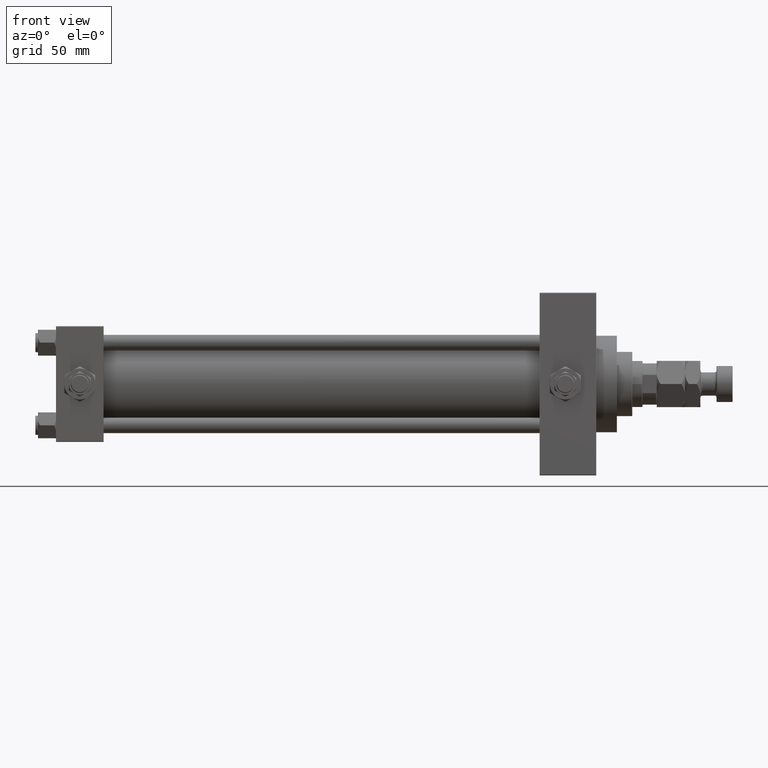
[diagram: clean part render]
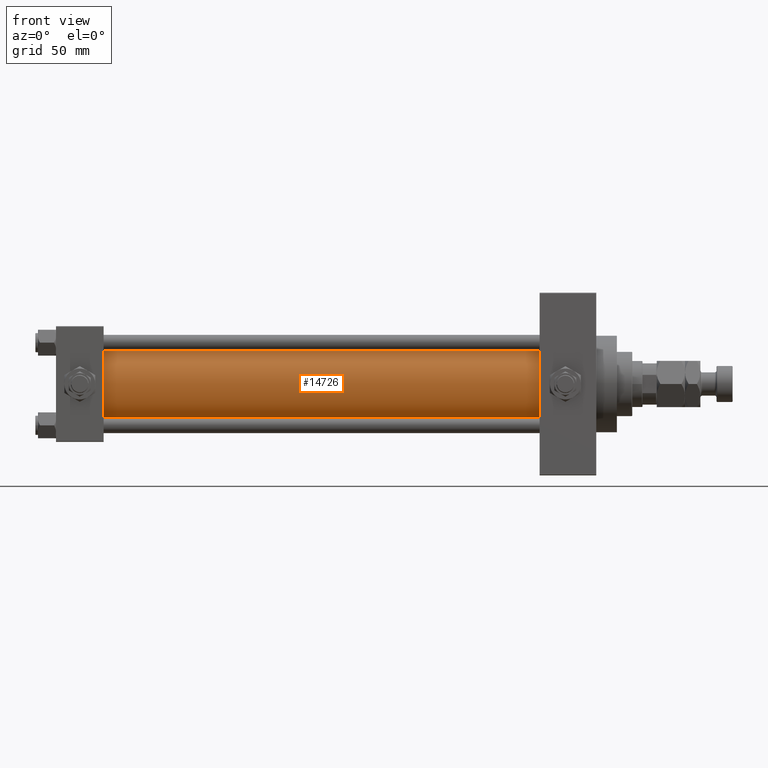
[diagram: same view with one face highlighted and labeled with its STEP entity id]
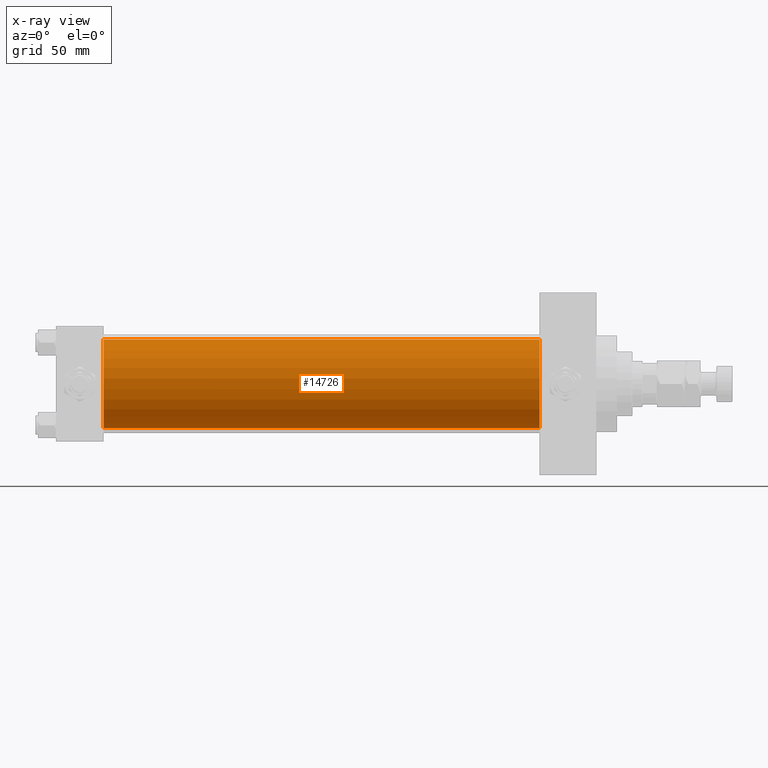
[diagram: x-ray of the same camera — body ghosted, the highlighted face saturated]
A machine part, front view. The second image highlights one B-rep face of the part: STEP entity #14726.
The next image is the same camera in x-ray: the body ghosted, the highlighted face saturated — about 0% of this face is hidden behind the body in this view.
In plain terms, the highlighted cylindrical surface (partial cylindrical patch) has radius 34.5 mm, axis along (-1, -0, -0).
Its self-contained STEP definition (entity closure, byte-faithful):
#1322 = DIRECTION ( 'NONE',  ( 0.000000000000000000, 0.000000000000000000, 1.000000000000000000 ) ) ;
#1456 = EDGE_CURVE ( 'NONE', #26749, #45295, #19487, .T. ) ;
#1845 = CYLINDRICAL_SURFACE ( 'NONE', #19035, 34.50000000000000000 ) ;
#2168 = VERTEX_POINT ( 'NONE', #44178 ) ;
#3037 = CARTESIAN_POINT ( 'NONE',  ( 376.0000000000000000, -2.602085213965210642E-15, 34.50000000000000000 ) ) ;
#5435 = DIRECTION ( 'NONE',  ( -1.000000000000000000, -0.000000000000000000, -0.000000000000000000 ) ) ;
#6511 = CIRCLE ( 'NONE', #26272, 34.50000000000000000 ) ;
#12793 = CARTESIAN_POINT ( 'NONE',  ( 376.0000000000000000, 1.622946243093158675E-15, -34.50000000000000000 ) ) ;
#14726 = ADVANCED_FACE ( 'NONE', ( #22430 ), #1845, .T. ) ;
#15744 = ORIENTED_EDGE ( 'NONE', *, *, #1456, .F. ) ;
#16106 = CARTESIAN_POINT ( 'NONE',  ( 376.0000000000000000, -2.602085213965210642E-15, 34.50000000000000000 ) ) ;
#17470 = DIRECTION ( 'NONE',  ( 0.000000000000000000, 0.000000000000000000, -1.000000000000000000 ) ) ;
#19035 = AXIS2_PLACEMENT_3D ( 'NONE', #41033, #45653, #38174 ) ;
#19487 = CIRCLE ( 'NONE', #49937, 34.50000000000000000 ) ;
#21162 = CARTESIAN_POINT ( 'NONE',  ( 36.99999999999997868, -2.602085213965210642E-15, 0.000000000000000000 ) ) ;
#21756 = VERTEX_POINT ( 'NONE', #50910 ) ;
#21932 = EDGE_CURVE ( 'NONE', #26749, #2168, #24611, .T. ) ;
#22430 = FACE_OUTER_BOUND ( 'NONE', #39359, .T. ) ;
#24611 = LINE ( 'NONE', #16106, #29923 ) ;
#26272 = AXIS2_PLACEMENT_3D ( 'NONE', #21162, #36665, #1322 ) ;
#26749 = VERTEX_POINT ( 'NONE', #3037 ) ;
#27803 = CARTESIAN_POINT ( 'NONE',  ( 376.0000000000000000, -2.602085213965210642E-15, 0.000000000000000000 ) ) ;
#28893 = LINE ( 'NONE', #33273, #48703 ) ;
#29588 = DIRECTION ( 'NONE',  ( 1.000000000000000000, 0.000000000000000000, 0.000000000000000000 ) ) ;
#29923 = VECTOR ( 'NONE', #47314, 1000.000000000000000 ) ;
#32765 = ORIENTED_EDGE ( 'NONE', *, *, #43808, .F. ) ;
#33273 = CARTESIAN_POINT ( 'NONE',  ( 376.0000000000000000, 1.622946243093158675E-15, -34.50000000000000000 ) ) ;
#34924 = EDGE_CURVE ( 'NONE', #2168, #21756, #6511, .T. ) ;
#35658 = ORIENTED_EDGE ( 'NONE', *, *, #21932, .T. ) ;
#36665 = DIRECTION ( 'NONE',  ( 1.000000000000000000, -0.000000000000000000, 0.000000000000000000 ) ) ;
#38174 = DIRECTION ( 'NONE',  ( 0.000000000000000000, 0.000000000000000000, 1.000000000000000000 ) ) ;
#39359 = EDGE_LOOP ( 'NONE', ( #32765, #15744, #35658, #44572 ) ) ;
#41033 = CARTESIAN_POINT ( 'NONE',  ( 376.0000000000000000, -2.602085213965210642E-15, 0.000000000000000000 ) ) ;
#43808 = EDGE_CURVE ( 'NONE', #45295, #21756, #28893, .T. ) ;
#44178 = CARTESIAN_POINT ( 'NONE',  ( 36.99999999999997868, -2.602085213965210642E-15, 34.50000000000000000 ) ) ;
#44572 = ORIENTED_EDGE ( 'NONE', *, *, #34924, .T. ) ;
#45295 = VERTEX_POINT ( 'NONE', #12793 ) ;
#45653 = DIRECTION ( 'NONE',  ( -1.000000000000000000, -0.000000000000000000, -0.000000000000000000 ) ) ;
#47314 = DIRECTION ( 'NONE',  ( -1.000000000000000000, -0.000000000000000000, -0.000000000000000000 ) ) ;
#48703 = VECTOR ( 'NONE', #5435, 1000.000000000000000 ) ;
#49937 = AXIS2_PLACEMENT_3D ( 'NONE', #27803, #29588, #17470 ) ;
#50910 = CARTESIAN_POINT ( 'NONE',  ( 36.99999999999997868, 1.622946243093158675E-15, -34.50000000000000000 ) ) ;